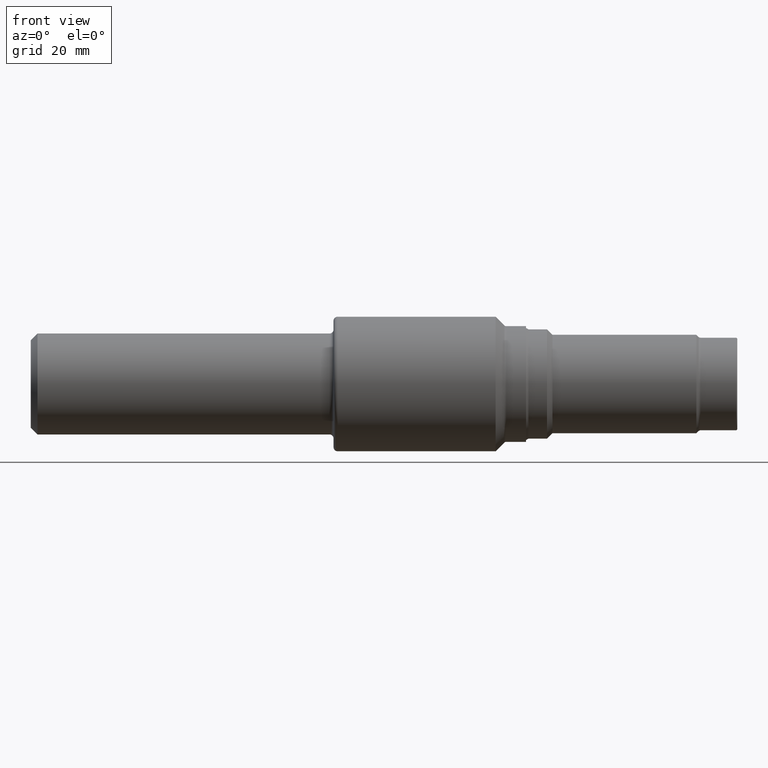
[diagram: clean part render]
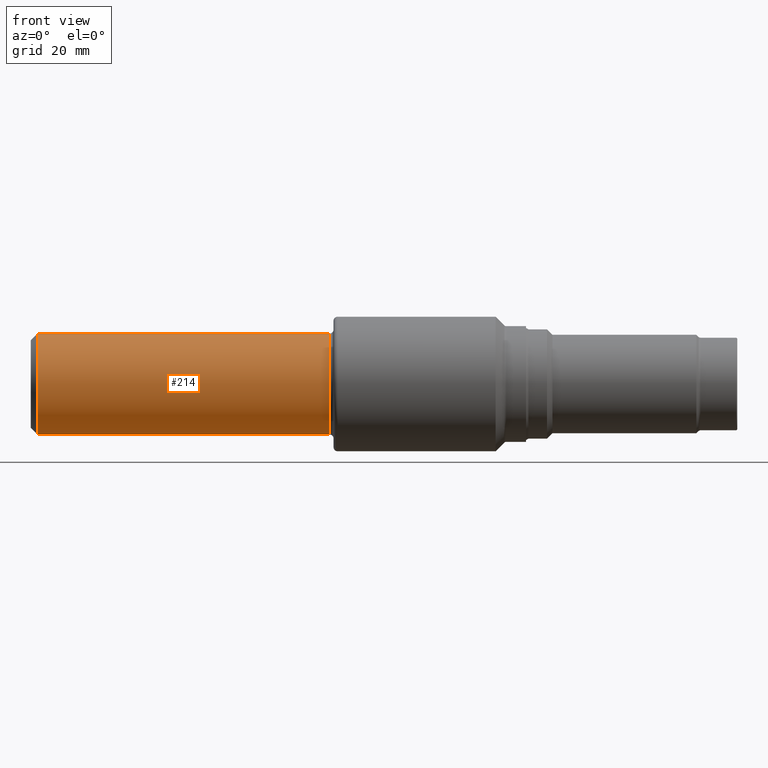
[diagram: same view with one face highlighted and labeled with its STEP entity id]
A machine part, front view. The second image highlights one B-rep face of the part: STEP entity #214.
In plain terms, the highlighted cylindrical surface (partial cylindrical patch) has radius 9.5212 mm, axis along (-1, -0, -0).
Its self-contained STEP definition (entity closure, byte-faithful):
#7 = CIRCLE ( 'NONE', #990, 0.3748500000000000165 ) ;
#11 = EDGE_LOOP ( 'NONE', ( #627, #724, #491, #256 ) ) ;
#20 = VERTEX_POINT ( 'NONE', #307 ) ;
#44 = EDGE_CURVE ( 'NONE', #934, #20, #763, .T. ) ;
#65 = DIRECTION ( 'NONE',  ( -1.000000000000000000, -0.000000000000000000, -0.000000000000000000 ) ) ;
#92 = CARTESIAN_POINT ( 'NONE',  ( 2.220000000000000195, 4.774285546475956938E-17, -0.3748500000000000165 ) ) ;
#155 = DIRECTION ( 'NONE',  ( -1.000000000000000000, -0.000000000000000000, -0.000000000000000000 ) ) ;
#160 = CARTESIAN_POINT ( 'NONE',  ( 0.05000000000000000278, 4.590588526603853748E-17, -0.3748500000000000165 ) ) ;
#196 = CARTESIAN_POINT ( 'NONE',  ( 2.220000000000000195, 0.000000000000000000, 0.3748500000000000165 ) ) ;
#214 = ADVANCED_FACE ( 'NONE', ( #409 ), #484, .T. ) ;
#231 = CARTESIAN_POINT ( 'NONE',  ( 0.000000000000000000, 0.000000000000000000, 0.000000000000000000 ) ) ;
#256 = ORIENTED_EDGE ( 'NONE', *, *, #44, .F. ) ;
#257 = VECTOR ( 'NONE', #834, 39.37007874015748143 ) ;
#267 = CARTESIAN_POINT ( 'NONE',  ( 0.000000000000000000, 4.590588526603853748E-17, -0.3748500000000000165 ) ) ;
#298 = VERTEX_POINT ( 'NONE', #196 ) ;
#307 = CARTESIAN_POINT ( 'NONE',  ( 0.05000000000000000278, 0.000000000000000000, 0.3748500000000000165 ) ) ;
#358 = LINE ( 'NONE', #267, #257 ) ;
#391 = AXIS2_PLACEMENT_3D ( 'NONE', #231, #155, #571 ) ;
#409 = FACE_OUTER_BOUND ( 'NONE', #11, .T. ) ;
#450 = DIRECTION ( 'NONE',  ( 0.000000000000000000, 0.000000000000000000, 1.000000000000000000 ) ) ;
#484 = CYLINDRICAL_SURFACE ( 'NONE', #391, 0.3748500000000000165 ) ;
#491 = ORIENTED_EDGE ( 'NONE', *, *, #1047, .T. ) ;
#494 = VECTOR ( 'NONE', #822, 39.37007874015748143 ) ;
#525 = EDGE_CURVE ( 'NONE', #602, #298, #7, .T. ) ;
#558 = EDGE_CURVE ( 'NONE', #602, #934, #358, .T. ) ;
#571 = DIRECTION ( 'NONE',  ( 0.000000000000000000, 0.000000000000000000, 1.000000000000000000 ) ) ;
#602 = VERTEX_POINT ( 'NONE', #92 ) ;
#627 = ORIENTED_EDGE ( 'NONE', *, *, #558, .F. ) ;
#674 = CARTESIAN_POINT ( 'NONE',  ( 2.220000000000000195, 0.000000000000000000, 0.000000000000000000 ) ) ;
#676 = LINE ( 'NONE', #915, #494 ) ;
#678 = DIRECTION ( 'NONE',  ( 0.000000000000000000, 0.000000000000000000, 1.000000000000000000 ) ) ;
#724 = ORIENTED_EDGE ( 'NONE', *, *, #525, .T. ) ;
#755 = DIRECTION ( 'NONE',  ( -1.000000000000000000, -0.000000000000000000, -0.000000000000000000 ) ) ;
#763 = CIRCLE ( 'NONE', #872, 0.3748500000000000165 ) ;
#792 = CARTESIAN_POINT ( 'NONE',  ( 0.05000000000000000278, 0.000000000000000000, 0.000000000000000000 ) ) ;
#822 = DIRECTION ( 'NONE',  ( -1.000000000000000000, -0.000000000000000000, -0.000000000000000000 ) ) ;
#834 = DIRECTION ( 'NONE',  ( -1.000000000000000000, -0.000000000000000000, -0.000000000000000000 ) ) ;
#872 = AXIS2_PLACEMENT_3D ( 'NONE', #792, #65, #450 ) ;
#915 = CARTESIAN_POINT ( 'NONE',  ( 0.000000000000000000, 0.000000000000000000, 0.3748500000000000165 ) ) ;
#934 = VERTEX_POINT ( 'NONE', #160 ) ;
#990 = AXIS2_PLACEMENT_3D ( 'NONE', #674, #755, #678 ) ;
#1047 = EDGE_CURVE ( 'NONE', #298, #20, #676, .T. ) ;